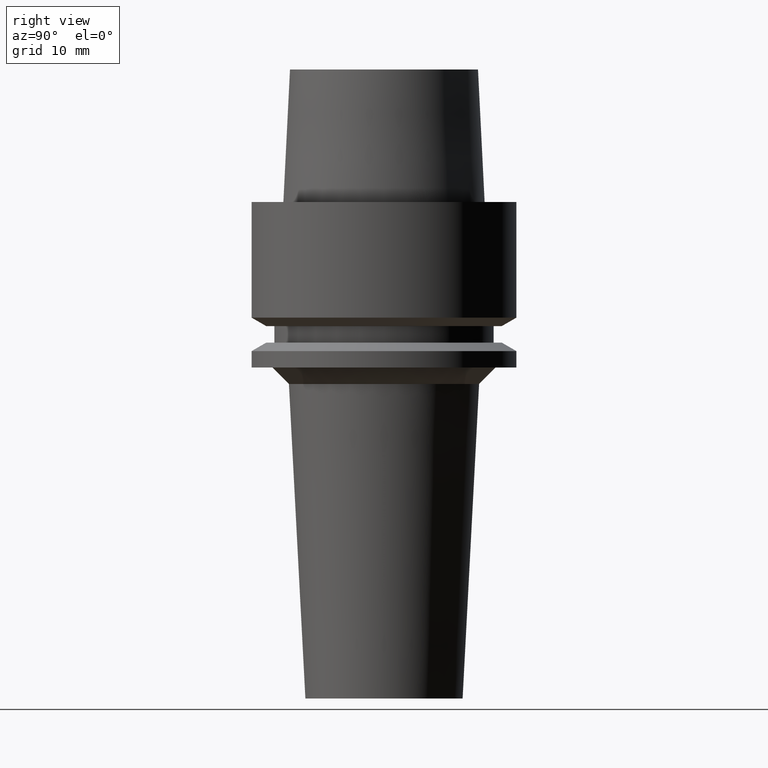
[diagram: clean part render]
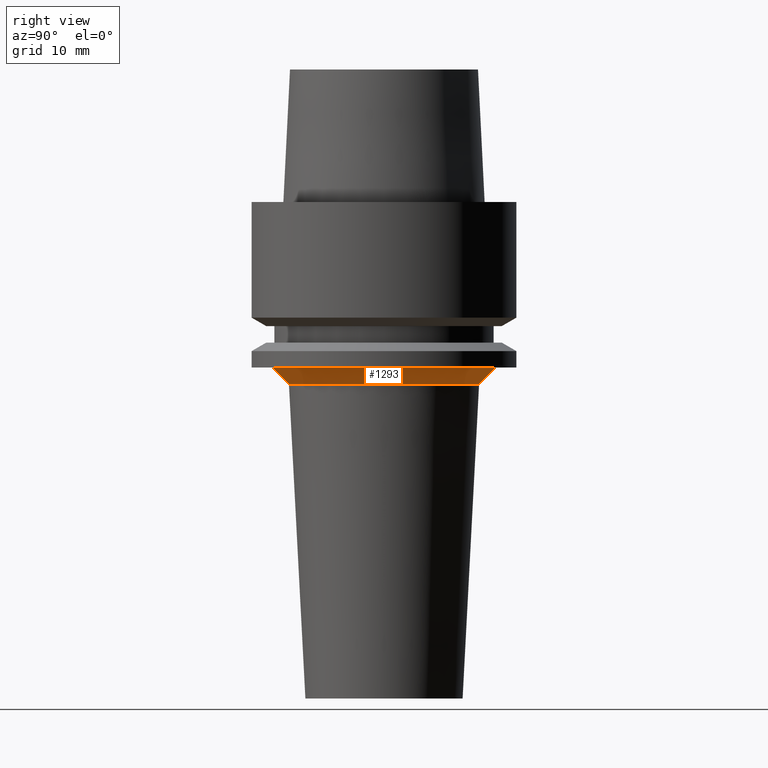
[diagram: same view with one face highlighted and labeled with its STEP entity id]
A machine part, right view. The second image highlights one B-rep face of the part: STEP entity #1293.
In plain terms, the highlighted conical surface has half-angle 45 deg.
Its self-contained STEP definition (entity closure, byte-faithful):
#453=CARTESIAN_POINT('',(0.E0,0.E0,-2.2E1));
#454=DIRECTION('',(0.E0,0.E0,1.E0));
#455=DIRECTION('',(0.E0,-1.E0,0.E0));
#456=AXIS2_PLACEMENT_3D('',#453,#454,#455);
#468=DIRECTION('',(0.E0,7.071067811867E-1,-7.071067811864E-1));
#469=VECTOR('',#468,2.828427124747E0);
#470=CARTESIAN_POINT('',(0.E0,-1.349149561276E1,-2.E1));
#471=LINE('',#470,#469);
#483=DIRECTION('',(0.E0,-7.071067811867E-1,-7.071067811864E-1));
#484=VECTOR('',#483,2.828427124747E0);
#485=CARTESIAN_POINT('',(0.E0,1.349149561276E1,-2.E1));
#486=LINE('',#485,#484);
#514=CARTESIAN_POINT('',(0.E0,0.E0,-2.E1));
#515=DIRECTION('',(0.E0,0.E0,-1.E0));
#516=DIRECTION('',(0.E0,1.E0,0.E0));
#517=AXIS2_PLACEMENT_3D('',#514,#515,#516);
#792=CARTESIAN_POINT('',(0.E0,1.149149561276E1,-2.2E1));
#793=VERTEX_POINT('',#792);
#794=CARTESIAN_POINT('',(0.E0,-1.149149561276E1,-2.2E1));
#795=VERTEX_POINT('',#794);
#796=CARTESIAN_POINT('',(0.E0,1.349149561276E1,-2.E1));
#797=VERTEX_POINT('',#796);
#798=CARTESIAN_POINT('',(0.E0,-1.349149561276E1,-2.E1));
#799=VERTEX_POINT('',#798);
#1281=CARTESIAN_POINT('',(0.E0,0.E0,-2.1E1));
#1282=DIRECTION('',(0.E0,0.E0,1.E0));
#1283=DIRECTION('',(0.E0,1.E0,0.E0));
#1284=AXIS2_PLACEMENT_3D('',#1281,#1282,#1283);
#1285=CONICAL_SURFACE('',#1284,1.249149561276E1,4.5E1);
#1286=ORIENTED_EDGE('',*,*,#1271,.T.);
#1287=ORIENTED_EDGE('',*,*,#1248,.F.);
#1288=ORIENTED_EDGE('',*,*,#1275,.F.);
#1290=ORIENTED_EDGE('',*,*,#1289,.F.);
#1291=EDGE_LOOP('',(#1286,#1287,#1288,#1290));
#1292=FACE_OUTER_BOUND('',#1291,.F.);
#457=CIRCLE('',#456,1.149149561276E1);
#518=CIRCLE('',#517,1.349149561276E1);
#1248=EDGE_CURVE('',#795,#793,#457,.T.);
#1271=EDGE_CURVE('',#797,#793,#486,.T.);
#1275=EDGE_CURVE('',#799,#795,#471,.T.);
#1289=EDGE_CURVE('',#797,#799,#518,.T.);
#1293=ADVANCED_FACE('',(#1292),#1285,.T.);